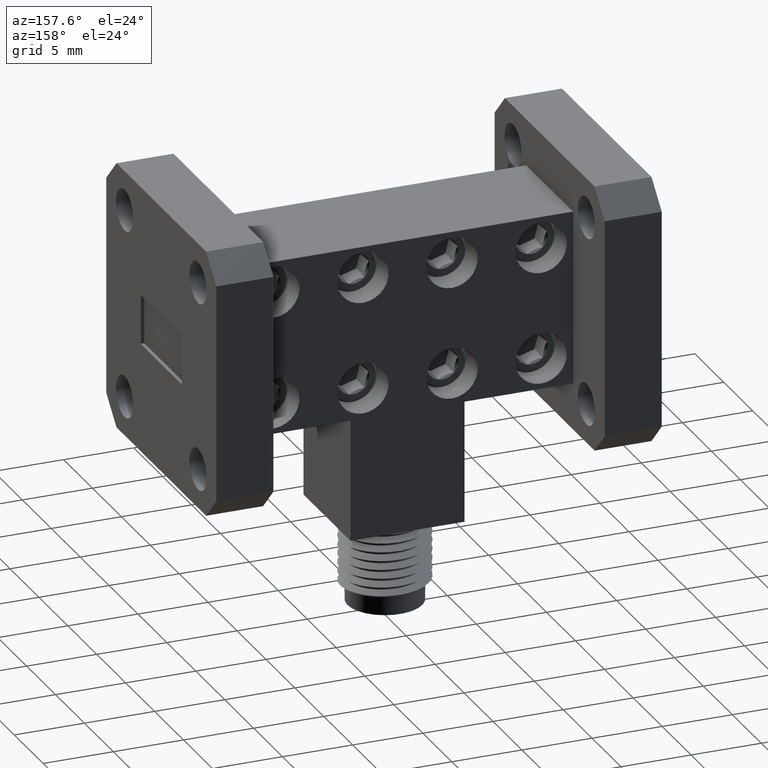
[diagram: clean part render]
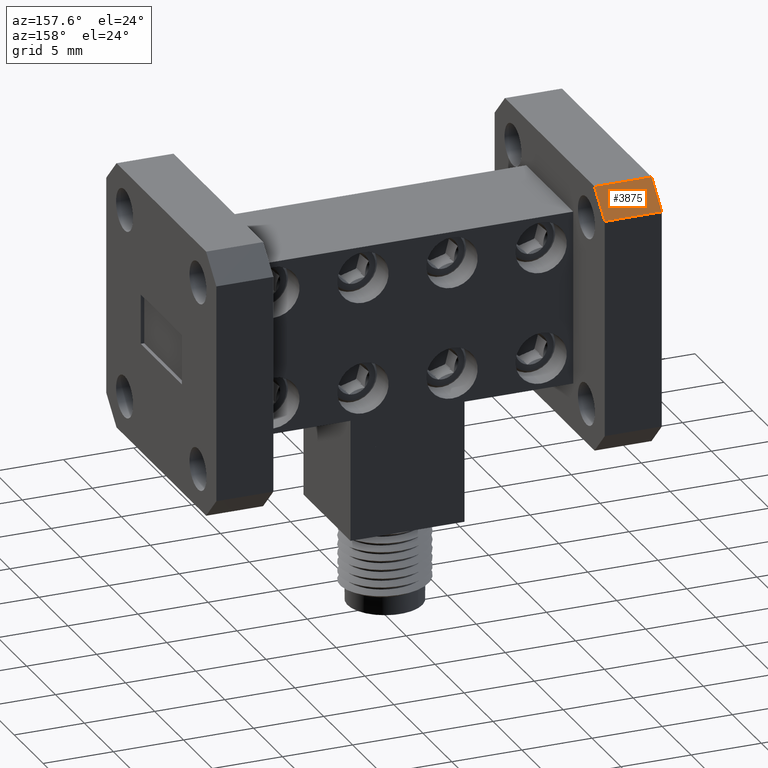
[diagram: same view with one face highlighted and labeled with its STEP entity id]
A machine part, auxiliary view. The second image highlights one B-rep face of the part: STEP entity #3875.
In plain terms, the highlighted planar face has unit normal (0, 0.7071, 0.7071).
Its self-contained STEP definition (entity closure, byte-faithful):
#435 = VERTEX_POINT ( 'NONE', #3037 ) ;
#641 = ORIENTED_EDGE ( 'NONE', *, *, #4927, .F. ) ;
#709 = CARTESIAN_POINT ( 'NONE',  ( -0.6393643473207042400, 0.5123681026864124200, 0.4964665074677266400 ) ) ;
#762 = EDGE_CURVE ( 'NONE', #6543, #8190, #2833, .T. ) ;
#1342 = VECTOR ( 'NONE', #3736, 39.37007874015748100 ) ;
#1347 = ORIENTED_EDGE ( 'NONE', *, *, #2701, .F. ) ;
#1442 = CARTESIAN_POINT ( 'NONE',  ( -0.4793643473207041000, 0.5123681026864124200, 0.4964665074677266400 ) ) ;
#2261 = DIRECTION ( 'NONE',  ( -1.000000000000000000, 0.0000000000000000000, 1.092739197465705300E-016 ) ) ;
#2304 = ORIENTED_EDGE ( 'NONE', *, *, #6476, .F. ) ;
#2503 = CARTESIAN_POINT ( 'NONE',  ( -0.6393643473207042400, 0.5123681026864124200, 0.4964665074677266400 ) ) ;
#2701 = EDGE_CURVE ( 'NONE', #8190, #8786, #5762, .T. ) ;
#2760 = CARTESIAN_POINT ( 'NONE',  ( -0.4793643473207042100, 0.5823681026864124800, 0.4264665074677268500 ) ) ;
#2833 = LINE ( 'NONE', #4758, #10531 ) ;
#2861 = AXIS2_PLACEMENT_3D ( 'NONE', #10823, #3209, #2261 ) ;
#3037 = CARTESIAN_POINT ( 'NONE',  ( -0.6393643473207042400, 0.5823681026864124800, 0.4264665074677269100 ) ) ;
#3209 = DIRECTION ( 'NONE',  ( 7.726832965963477200E-017, 0.7071067811865461300, 0.7071067811865491300 ) ) ;
#3736 = DIRECTION ( 'NONE',  ( -7.850462293418891900E-017, 0.7071067811865491300, -0.7071067811865459100 ) ) ;
#3875 = ADVANCED_FACE ( 'NONE', ( #4872 ), #7092, .T. ) ;
#3876 = LINE ( 'NONE', #10394, #1342 ) ;
#4758 = CARTESIAN_POINT ( 'NONE',  ( -0.4793643473207042100, 0.5473484176470416700, 0.4614861925070974900 ) ) ;
#4872 = FACE_OUTER_BOUND ( 'NONE', #4941, .T. ) ;
#4927 = EDGE_CURVE ( 'NONE', #8786, #435, #3876, .T. ) ;
#4941 = EDGE_LOOP ( 'NONE', ( #641, #1347, #8277, #2304 ) ) ;
#5291 = VECTOR ( 'NONE', #7483, 39.37007874015748100 ) ;
#5762 = LINE ( 'NONE', #2503, #5291 ) ;
#6476 = EDGE_CURVE ( 'NONE', #435, #6543, #7588, .T. ) ;
#6543 = VERTEX_POINT ( 'NONE', #2760 ) ;
#6643 = DIRECTION ( 'NONE',  ( 1.000000000000000000, 0.0000000000000000000, -1.092739197465705300E-016 ) ) ;
#7092 = PLANE ( 'NONE',  #2861 ) ;
#7483 = DIRECTION ( 'NONE',  ( -1.000000000000000000, 0.0000000000000000000, 1.092739197465705300E-016 ) ) ;
#7588 = LINE ( 'NONE', #12410, #8776 ) ;
#8190 = VERTEX_POINT ( 'NONE', #1442 ) ;
#8277 = ORIENTED_EDGE ( 'NONE', *, *, #762, .F. ) ;
#8776 = VECTOR ( 'NONE', #6643, 39.37007874015748100 ) ;
#8786 = VERTEX_POINT ( 'NONE', #709 ) ;
#10394 = CARTESIAN_POINT ( 'NONE',  ( -0.6393643473207042400, 0.5823681026864124800, 0.4264665074677268500 ) ) ;
#10486 = DIRECTION ( 'NONE',  ( 7.850462293418891900E-017, -0.7071067811865491300, 0.7071067811865459100 ) ) ;
#10531 = VECTOR ( 'NONE', #10486, 39.37007874015748100 ) ;
#10823 = CARTESIAN_POINT ( 'NONE',  ( -0.01436434732070389900, 0.5823681026864124800, 0.4264665074677268500 ) ) ;
#12410 = CARTESIAN_POINT ( 'NONE',  ( -0.4793643473207042100, 0.5823681026864124800, 0.4264665074677268500 ) ) ;